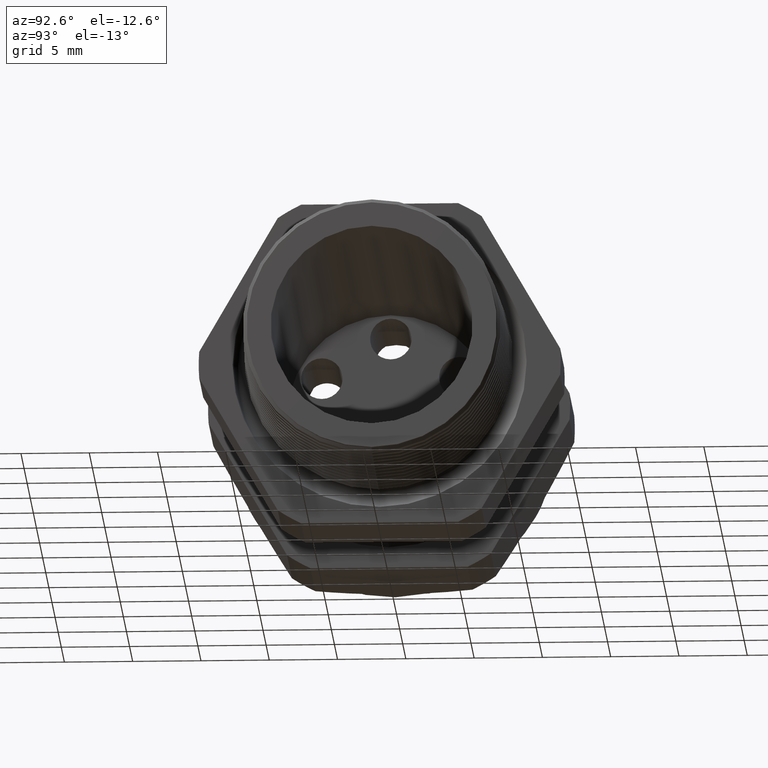
[diagram: clean part render]
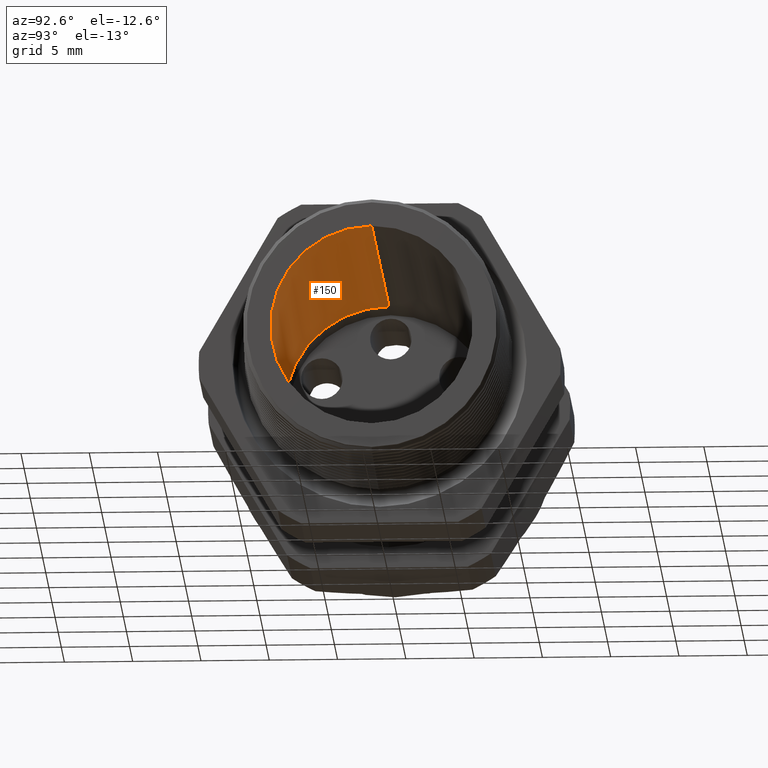
[diagram: same view with one face highlighted and labeled with its STEP entity id]
A machine part, auxiliary view. The second image highlights one B-rep face of the part: STEP entity #150.
In plain terms, the highlighted conical surface has half-angle 0.446 deg.
Its self-contained STEP definition (entity closure, byte-faithful):
#52 = EDGE_LOOP ( 'NONE', ( #148, #146, #143, #142 ) ) ;
#123 = VERTEX_POINT ( 'NONE', #2724 ) ;
#125 = VERTEX_POINT ( 'NONE', #2719 ) ;
#126 = EDGE_CURVE ( 'NONE', #123, #125, #2718, .T. ) ;
#141 = EDGE_CURVE ( 'NONE', #147, #123, #2750, .T. ) ;
#142 = ORIENTED_EDGE ( 'NONE', *, *, #141, .F. ) ;
#143 = ORIENTED_EDGE ( 'NONE', *, *, #126, .F. ) ;
#144 = EDGE_CURVE ( 'NONE', #145, #125, #2742, .T. ) ;
#145 = VERTEX_POINT ( 'NONE', #2738 ) ;
#146 = ORIENTED_EDGE ( 'NONE', *, *, #144, .T. ) ;
#147 = VERTEX_POINT ( 'NONE', #2737 ) ;
#148 = ORIENTED_EDGE ( 'NONE', *, *, #149, .T. ) ;
#149 = EDGE_CURVE ( 'NONE', #147, #145, #2736, .T. ) ;
#150 = ADVANCED_FACE ( 'NONE', ( #2731 ), #2730, .F. ) ;
#2714 = DIRECTION ( 'NONE',  ( 0.0000000000000000000, 0.0000000000000000000, -1.000000000000000000 ) ) ;
#2715 = DIRECTION ( 'NONE',  ( 1.000000000000000000, 0.0000000000000000000, 0.0000000000000000000 ) ) ;
#2716 = CARTESIAN_POINT ( 'NONE',  ( -0.9054330708661418900, 0.0000000000000000000, 0.0000000000000000000 ) ) ;
#2717 = AXIS2_PLACEMENT_3D ( 'NONE', #2716, #2715, #2714 ) ;
#2718 = CIRCLE ( 'NONE', #2717, 0.2999999999999999900 ) ;
#2719 = CARTESIAN_POINT ( 'NONE',  ( -0.9054330708661418900, 3.673940397442058900E-017, -0.2999999999999999900 ) ) ;
#2724 = CARTESIAN_POINT ( 'NONE',  ( -0.9054330708661418900, 0.0000000000000000000, 0.2999999999999999900 ) ) ;
#2729 = AXIS2_PLACEMENT_3D ( 'NONE', #2790, #2789, #2788 ) ;
#2730 = CONICAL_SURFACE ( 'NONE', #2729, 0.2999999999999999900, 0.007781927309401279900 ) ;
#2731 = FACE_OUTER_BOUND ( 'NONE', #52, .T. ) ;
#2732 = DIRECTION ( 'NONE',  ( 0.0000000000000000000, 0.0000000000000000000, -1.000000000000000000 ) ) ;
#2733 = DIRECTION ( 'NONE',  ( 1.000000000000000000, 0.0000000000000000000, 0.0000000000000000000 ) ) ;
#2734 = CARTESIAN_POINT ( 'NONE',  ( 0.2000000000000000400, 0.0000000000000000000, 0.0000000000000000000 ) ) ;
#2735 = AXIS2_PLACEMENT_3D ( 'NONE', #2734, #2733, #2732 ) ;
#2736 = CIRCLE ( 'NONE', #2735, 0.2913974265437366300 ) ;
#2737 = CARTESIAN_POINT ( 'NONE',  ( 0.2000000000000000400, 0.0000000000000000000, 0.2913974265437366300 ) ) ;
#2738 = CARTESIAN_POINT ( 'NONE',  ( 0.2000000000000000400, 3.621264827203845100E-017, -0.2913974265437366300 ) ) ;
#2739 = DIRECTION ( 'NONE',  ( -0.9999697209564802900, 9.530016182899079500E-019, -0.007781848766137508500 ) ) ;
#2740 = VECTOR ( 'NONE', #2739, 39.37007874015748100 ) ;
#2741 = CARTESIAN_POINT ( 'NONE',  ( -0.9054330708661418900, 3.673940397442058900E-017, -0.2999999999999999900 ) ) ;
#2742 = LINE ( 'NONE', #2741, #2740 ) ;
#2743 = DIRECTION ( 'NONE',  ( -0.9999697209564802900, 0.0000000000000000000, 0.007781848766137508500 ) ) ;
#2744 = VECTOR ( 'NONE', #2743, 39.37007874015748100 ) ;
#2745 = CARTESIAN_POINT ( 'NONE',  ( -0.9054330708661418900, 0.0000000000000000000, 0.2999999999999999900 ) ) ;
#2750 = LINE ( 'NONE', #2745, #2744 ) ;
#2788 = DIRECTION ( 'NONE',  ( 0.0000000000000000000, 0.0000000000000000000, 1.000000000000000000 ) ) ;
#2789 = DIRECTION ( 'NONE',  ( -1.000000000000000000, 0.0000000000000000000, 0.0000000000000000000 ) ) ;
#2790 = CARTESIAN_POINT ( 'NONE',  ( -0.9054330708661418900, 0.0000000000000000000, 0.0000000000000000000 ) ) ;